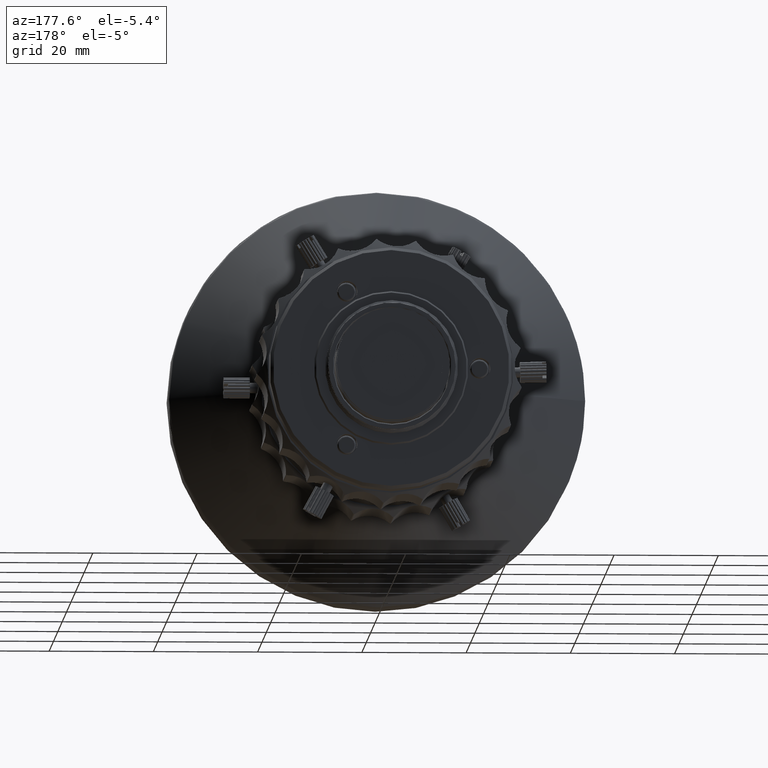
[diagram: clean part render]
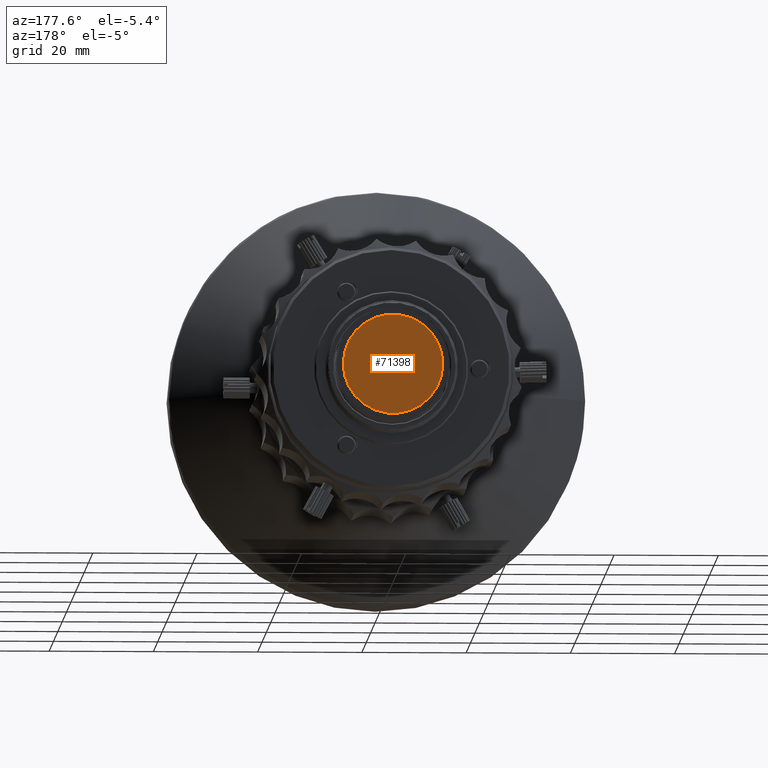
[diagram: same view with one face highlighted and labeled with its STEP entity id]
A machine part, auxiliary view. The second image highlights one B-rep face of the part: STEP entity #71398.
In plain terms, the highlighted planar face has unit normal (0, 1, 0).
Its self-contained STEP definition (entity closure, byte-faithful):
#6562 = VERTEX_POINT ( 'NONE', #100927 ) ;
#18747 = EDGE_CURVE ( 'NONE', #6562, #6562, #75019, .T. ) ;
#24826 = DIRECTION ( 'NONE',  ( 0.9999835401553615055, 0.000000000000000000, 0.005737544627336897511 ) ) ;
#41923 = DIRECTION ( 'NONE',  ( 2.712658557959655098E-17, 1.000000000000000000, 7.856813763408940847E-18 ) ) ;
#45529 = CARTESIAN_POINT ( 'NONE',  ( 5.711052554401734842E-13, 82.70464531778240769, 3.912685276346854710E-15 ) ) ;
#54073 = DIRECTION ( 'NONE',  ( -0.9999835401553613945, 2.717121789980829520E-17, -0.005737544627336895776 ) ) ;
#60770 = AXIS2_PLACEMENT_3D ( 'NONE', #45529, #81844, #54073 ) ;
#62318 = AXIS2_PLACEMENT_3D ( 'NONE', #103857, #41923, #24826 ) ;
#64237 = FACE_OUTER_BOUND ( 'NONE', #108250, .T. ) ;
#71398 = ADVANCED_FACE ( 'NONE', ( #64237 ), #107461, .T. ) ;
#75019 = CIRCLE ( 'NONE', #62318, 9.550000661448052597 ) ;
#81844 = DIRECTION ( 'NONE',  ( 2.712658557959627673E-17, 1.000000000000000000, 7.856813763408937765E-18 ) ) ;
#100927 = CARTESIAN_POINT ( 'NONE',  ( 9.549843469920869410, 82.70464531778243611, 0.05479355498615574166 ) ) ;
#101465 = ORIENTED_EDGE ( 'NONE', *, *, #18747, .T. ) ;
#103857 = CARTESIAN_POINT ( 'NONE',  ( 2.118205389305310353E-15, 82.70464531778243611, 6.480429487977142879E-16 ) ) ;
#107461 = PLANE ( 'NONE',  #60770 ) ;
#108250 = EDGE_LOOP ( 'NONE', ( #101465 ) ) ;